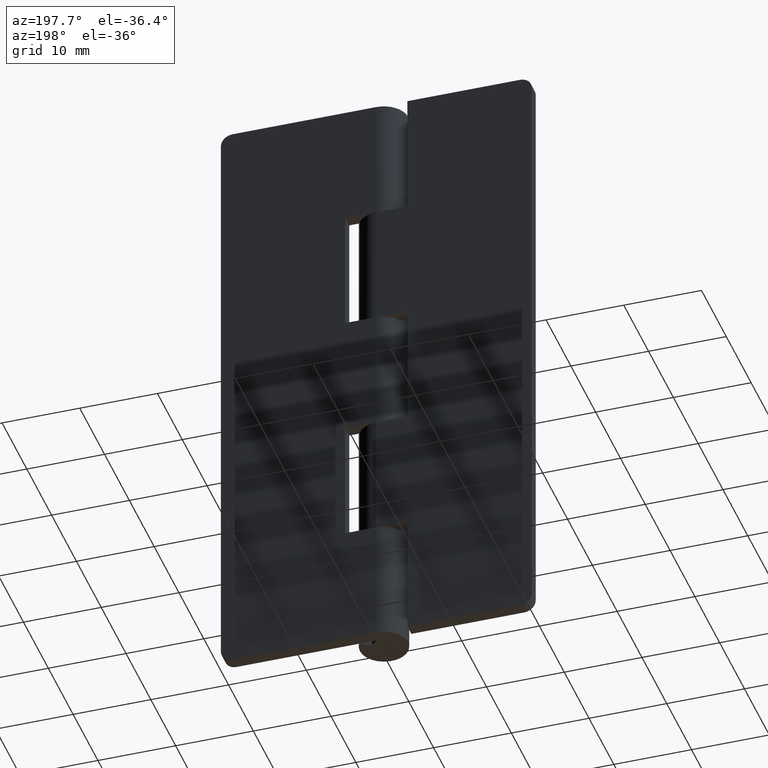
[diagram: clean part render]
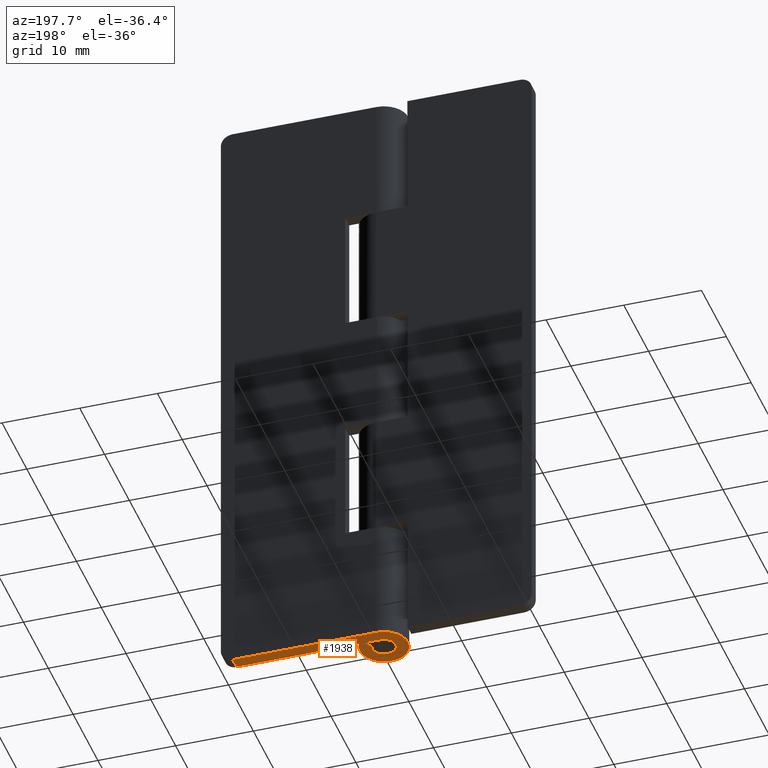
[diagram: same view with one face highlighted and labeled with its STEP entity id]
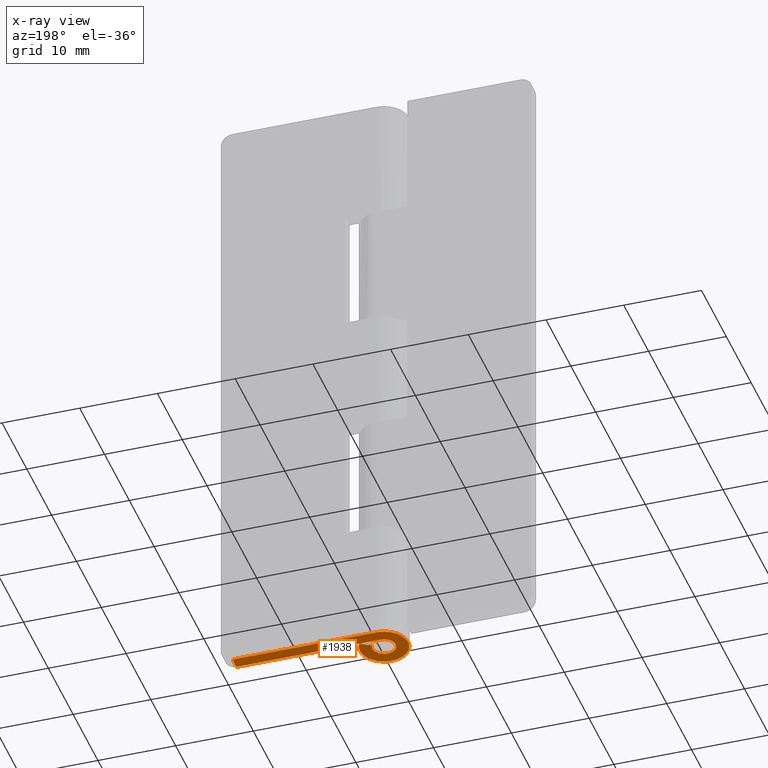
[diagram: x-ray of the same camera — body ghosted, the highlighted face saturated]
A machine part, auxiliary view. The second image highlights one B-rep face of the part: STEP entity #1938.
The next image is the same camera in x-ray: the body ghosted, the highlighted face saturated — about 0% of this face is hidden behind the body in this view.
In plain terms, the highlighted face is a freeform B-spline surface patch.
Its self-contained STEP definition (entity closure, byte-faithful):
#1073=CARTESIAN_POINT('',(18.500000000000000,3.099998000000000,0.0));
#1074=VERTEX_POINT('',#1073);
#1086=CARTESIAN_POINT('',(0.003521362805218,3.099998000000000,0.0));
#1087=VERTEX_POINT('',#1086);
#1088=CARTESIAN_POINT('',(18.500000000000000,3.099998000000000,0.0));
#1089=CARTESIAN_POINT('',(0.003521362805218,3.099998000000000,0.0));
#1090=QUASI_UNIFORM_CURVE('',1,(#1088,#1089),.UNSPECIFIED.,.F.,.U.);
#1091=EDGE_CURVE('',#1074,#1087,#1090,.T.);
#1202=CARTESIAN_POINT('',(-2.755364E-016,1.500000000000000,0.0));
#1203=VERTEX_POINT('',#1202);
#1243=CARTESIAN_POINT('',(1.325797621821316,0.701612903225806,0.0));
#1244=VERTEX_POINT('',#1243);
#1250=CARTESIAN_POINT('',(-0.773815405252075,-1.284994053914090,0.0));
#1251=VERTEX_POINT('',#1250);
#1252=CARTESIAN_POINT('',(1.325797621821316,0.701612903225806,0.0));
#1253=CARTESIAN_POINT('',(1.392316734380770,0.575983467816745,0.0));
#1254=CARTESIAN_POINT('',(1.503249923511785,0.267001813361330,0.0));
#1255=CARTESIAN_POINT('',(1.511582608951649,-0.156186011111366,0.0));
#1256=CARTESIAN_POINT('',(1.406197638813338,-0.560834193439479,0.0));
#1257=CARTESIAN_POINT('',(1.247477428495187,-0.859765248347905,0.0));
#1258=CARTESIAN_POINT('',(0.995112787815143,-1.140732849816567,0.0));
#1259=CARTESIAN_POINT('',(0.725610714414339,-1.327282169724570,0.0));
#1260=CARTESIAN_POINT('',(0.384947757301513,-1.464156402323890,0.0));
#1261=CARTESIAN_POINT('',(0.040040125148038,-1.515756039944499,0.0));
#1262=CARTESIAN_POINT('',(-0.376591241800914,-1.471662614032802,0.0));
#1263=CARTESIAN_POINT('',(-0.634672601320787,-1.368903324896107,0.0));
#1264=CARTESIAN_POINT('',(-0.773815405252075,-1.284994053914090,0.0));
#1265=B_SPLINE_CURVE_WITH_KNOTS('',3,(#1252,#1253,#1254,#1255,#1256,#1257,#1258,#1259,#1260,#1261,#1262,#1263,#1264),.UNSPECIFIED.,.F.,.U.,(4,1,1,1,1,1,1,1,1,1,4),(0.000000370000003,0.426487340643195,0.974854852059540,1.249038402934760,1.675544642044760,1.980124007116639,2.376177902094256,2.650376304307907,3.076885961725755,3.411985963308500,3.899409420552113),.UNSPECIFIED.);
#1266=EDGE_CURVE('',#1244,#1251,#1265,.T.);
#1268=CARTESIAN_POINT('',(-0.773815405252075,-1.284994053914090,0.0));
#1269=CARTESIAN_POINT('',(-0.956674778343256,-1.175208769060584,0.0));
#1270=CARTESIAN_POINT('',(-1.228569886845882,-0.918560722152231,0.0));
#1271=CARTESIAN_POINT('',(-1.447449821650352,-0.465251344463223,0.0));
#1272=CARTESIAN_POINT('',(-1.521772947992657,-0.020704125702710,0.0));
#1273=CARTESIAN_POINT('',(-1.468928488213265,0.387434547321989,0.0));
#1274=CARTESIAN_POINT('',(-1.328559656455153,0.716390303980845,0.0));
#1275=CARTESIAN_POINT('',(-1.162713788231208,0.960916605434345,0.0));
#1276=CARTESIAN_POINT('',(-0.919015551748881,1.208029317263768,0.0));
#1277=CARTESIAN_POINT('',(-0.527939412364912,1.436106306075992,0.0));
#1278=CARTESIAN_POINT('',(-0.182795752744368,1.500152189707328,0.0));
#1279=CARTESIAN_POINT('',(-2.755364E-016,1.500000000000000,0.0));
#1280=B_SPLINE_CURVE_WITH_KNOTS('',3,(#1268,#1269,#1270,#1271,#1272,#1273,#1274,#1275,#1276,#1277,#1278,#1279),.UNSPECIFIED.,.F.,.U.,(4,1,1,1,1,1,1,1,1,4),(0.000000369999562,0.639728594824897,1.096716770404550,1.492746528279552,1.980124038658420,2.315270907738396,2.558984872703642,2.863628790477383,3.351079546829910,3.899409482669193),.UNSPECIFIED.);
#1281=EDGE_CURVE('',#1251,#1203,#1280,.T.);
#1299=CARTESIAN_POINT('',(2.739981751764055,1.450000000000000,0.0));
#1300=VERTEX_POINT('',#1299);
#1306=CARTESIAN_POINT('',(2.739981751764055,1.450000000000000,0.0));
#1307=CARTESIAN_POINT('',(1.325797621821316,0.701612903225806,0.0));
#1308=QUASI_UNIFORM_CURVE('',1,(#1306,#1307),.UNSPECIFIED.,.F.,.U.);
#1309=EDGE_CURVE('',#1300,#1244,#1308,.T.);
#1451=CARTESIAN_POINT('',(-1.600727473712045,-2.654745101681789,0.0));
#1452=VERTEX_POINT('',#1451);
#1453=CARTESIAN_POINT('',(-1.600727473712045,-2.654745101681789,0.0));
#1454=CARTESIAN_POINT('',(-1.816468976001383,-2.524727771152445,0.0));
#1455=CARTESIAN_POINT('',(-2.149350912157642,-2.263853157017689,0.0));
#1456=CARTESIAN_POINT('',(-2.530648132923804,-1.814038984515914,0.0));
#1457=CARTESIAN_POINT('',(-2.845084038014649,-1.290432391264358,0.0));
#1458=CARTESIAN_POINT('',(-3.049348743203671,-0.688949311712164,0.0));
#1459=CARTESIAN_POINT('',(-3.119260177890681,-0.018045342047731,0.0));
#1460=CARTESIAN_POINT('',(-3.066730298411546,0.570370858674867,0.0));
#1461=CARTESIAN_POINT('',(-2.879044358042622,1.218240541207695,0.0));
#1462=CARTESIAN_POINT('',(-2.499791349143879,1.903781865733829,0.0));
#1463=CARTESIAN_POINT('',(-1.941718706523491,2.456869269026804,0.0));
#1464=CARTESIAN_POINT('',(-1.343985599032492,2.812697171607966,0.0));
#1465=CARTESIAN_POINT('',(-0.731158255270875,3.039437554191613,0.0));
#1466=CARTESIAN_POINT('',(-0.269355301147950,3.100405449362758,0.0));
#1467=CARTESIAN_POINT('',(0.003521362805218,3.099998000000000,0.0));
#1468=B_SPLINE_CURVE_WITH_KNOTS('',3,(#1453,#1454,#1455,#1456,#1457,#1458,#1459,#1460,#1461,#1462,#1463,#1464,#1465,#1466,#1467),.UNSPECIFIED.,.F.,.U.,(4,1,1,1,1,1,1,1,1,1,1,1,4),(0.000000054533924,0.755668176142312,1.259445452828312,1.763236248734433,2.581904605030631,3.148683665814984,3.778384464326467,4.345111696763080,5.163778307789944,6.108379641693805,6.675154743638816,7.241926710557042,8.060539298898449),.UNSPECIFIED.);
#1469=EDGE_CURVE('',#1452,#1087,#1468,.T.);
#1471=CARTESIAN_POINT('',(2.739981751764055,1.450000000000000,0.0));
#1472=CARTESIAN_POINT('',(2.897251817090183,1.153225028729755,0.0));
#1473=CARTESIAN_POINT('',(3.059557401130622,0.669317296857961,0.0));
#1474=CARTESIAN_POINT('',(3.118772814203659,-0.065429240892450,0.0));
#1475=CARTESIAN_POINT('',(3.050010528982488,-0.674102014295201,0.0));
#1476=CARTESIAN_POINT('',(2.820422489679004,-1.353761208683221,0.0));
#1477=CARTESIAN_POINT('',(2.438401522486094,-1.963953588681949,0.0));
#1478=CARTESIAN_POINT('',(1.951992172764008,-2.433248688322325,0.0));
#1479=CARTESIAN_POINT('',(1.457024942464522,-2.753742855336531,0.0));
#1480=CARTESIAN_POINT('',(0.875096262959893,-3.001232935321069,0.0));
#1481=CARTESIAN_POINT('',(0.145757423581992,-3.132872544439959,0.0));
#1482=CARTESIAN_POINT('',(-0.740313275944062,-3.056876713567172,0.0));
#1483=CARTESIAN_POINT('',(-1.313207077846037,-2.828342149395632,0.0));
#1484=CARTESIAN_POINT('',(-1.600727473712045,-2.654745101681789,0.0));
#1485=B_SPLINE_CURVE_WITH_KNOTS('',3,(#1471,#1472,#1473,#1474,#1475,#1476,#1477,#1478,#1479,#1480,#1481,#1482,#1483,#1484),.UNSPECIFIED.,.F.,.U.,(4,1,1,1,1,1,1,1,1,1,1,4),(0.000000054536336,1.007536964352862,1.511342484934378,2.204059705826198,2.833797969669258,3.652447915034136,4.345112782244737,4.848883444814748,5.415655553316283,6.234328922577372,7.052990203031580,8.060541312538149),.UNSPECIFIED.);
#1486=EDGE_CURVE('',#1300,#1452,#1485,.T.);
#1587=CARTESIAN_POINT('',(18.500000000000000,1.500000000000000,0.0));
#1588=VERTEX_POINT('',#1587);
#1602=CARTESIAN_POINT('',(18.500000000000000,3.099998000000000,0.0));
#1603=CARTESIAN_POINT('',(18.500000000000000,1.500000000000000,0.0));
#1604=QUASI_UNIFORM_CURVE('',1,(#1602,#1603),.UNSPECIFIED.,.F.,.U.);
#1605=EDGE_CURVE('',#1074,#1588,#1604,.T.);
#1919=CARTESIAN_POINT('',(-4.178690644903894,-3.408852107613718,0.0));
#1920=CARTESIAN_POINT('',(19.578909628209239,-3.408852107613718,0.0));
#1921=CARTESIAN_POINT('',(-4.178690644903894,3.409648198048699,0.0));
#1922=CARTESIAN_POINT('',(19.578909628209239,3.409648198048699,0.0));
#1923=B_SPLINE_SURFACE_WITH_KNOTS('',1,1,((#1919,#1921),(#1920,#1922)),.UNSPECIFIED.,.F.,.F.,.U.,(2,2),(2,2),(0.0,23.757600273113130),(0.0,6.818500305662417),.UNSPECIFIED.);
#1924=ORIENTED_EDGE('',*,*,#1091,.F.);
#1925=ORIENTED_EDGE('',*,*,#1605,.T.);
#1926=CARTESIAN_POINT('',(-2.755364E-016,1.500000000000000,0.0));
#1927=CARTESIAN_POINT('',(18.500000000000000,1.500000000000000,0.0));
#1928=QUASI_UNIFORM_CURVE('',1,(#1926,#1927),.UNSPECIFIED.,.F.,.U.);
#1929=EDGE_CURVE('',#1203,#1588,#1928,.T.);
#1930=ORIENTED_EDGE('',*,*,#1929,.F.);
#1931=ORIENTED_EDGE('',*,*,#1281,.F.);
#1932=ORIENTED_EDGE('',*,*,#1266,.F.);
#1933=ORIENTED_EDGE('',*,*,#1309,.F.);
#1934=ORIENTED_EDGE('',*,*,#1486,.T.);
#1935=ORIENTED_EDGE('',*,*,#1469,.T.);
#1936=EDGE_LOOP('',(#1924,#1925,#1930,#1931,#1932,#1933,#1934,#1935));
#1937=FACE_OUTER_BOUND('',#1936,.T.);
#1938=ADVANCED_FACE('',(#1937),#1923,.F.);